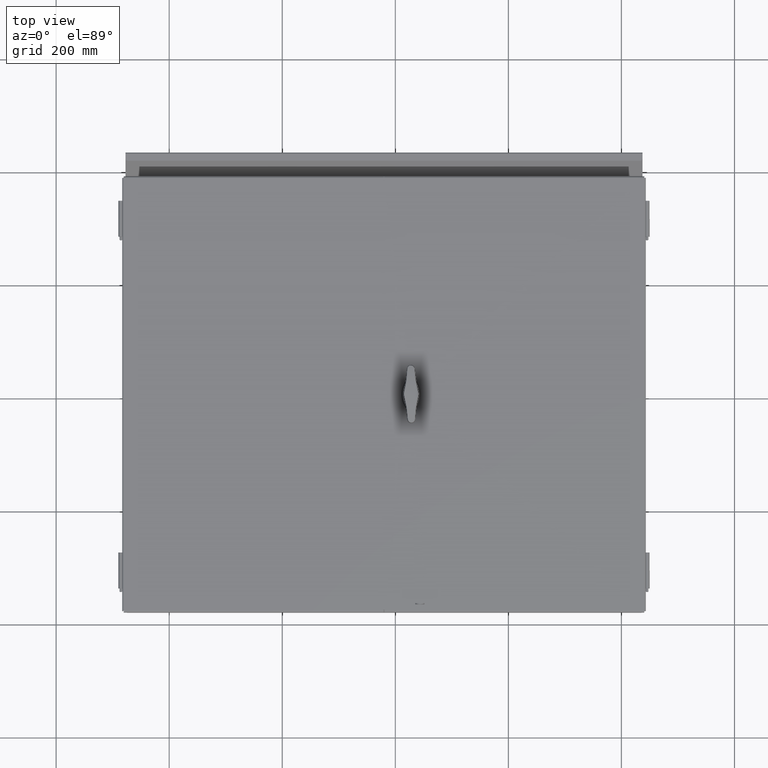
[diagram: clean part render]
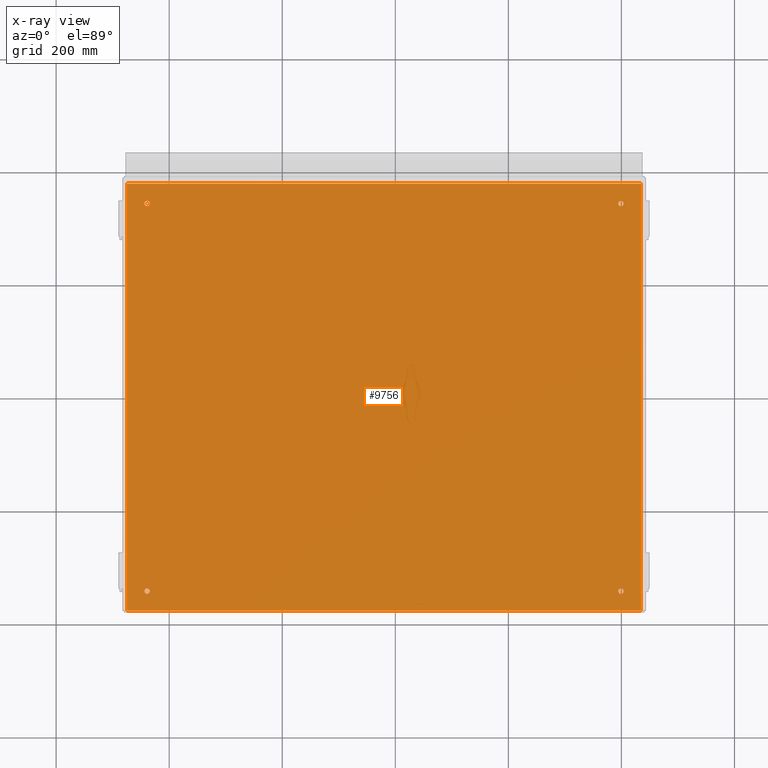
[diagram: x-ray — body ghosted, one internal face saturated and labeled with its STEP entity id]
A machine part, top view, then the same camera in x-ray: the body is ghosted and one INTERNAL B-rep face — a face not visible from any outside direction — is saturated and labeled: STEP entity #9756.
In plain terms, the highlighted planar face has unit normal (0, -0, 1).
Its self-contained STEP definition (entity closure, byte-faithful):
#629=PLANE($,#10470);
#1056=LINE($,#14647,#1804);
#1062=LINE($,#14667,#1810);
#1064=LINE($,#14670,#1812);
#1066=LINE($,#14674,#1814);
#1804=VECTOR($,#11735,35.8126);
#1810=VECTOR($,#11761,35.8126);
#1812=VECTOR($,#11765,29.7501);
#1814=VECTOR($,#11771,29.7501);
#2479=FACE_BOUND($,#3320,.T.);
#2480=FACE_BOUND($,#3321,.T.);
#2481=FACE_BOUND($,#3322,.T.);
#2482=FACE_BOUND($,#3323,.T.);
#2483=FACE_BOUND($,#3324,.T.);
#3320=EDGE_LOOP($,(#6934));
#3321=EDGE_LOOP($,(#6935));
#3322=EDGE_LOOP($,(#6936));
#3323=EDGE_LOOP($,(#6937));
#3324=EDGE_LOOP($,(#6938,#6939,#6940,#6941));
#4025=CIRCLE($,#10390,0.1875);
#4027=CIRCLE($,#10393,0.1875);
#4029=CIRCLE($,#10396,0.1875);
#4031=CIRCLE($,#10399,0.1875);
#4450=VERTEX_POINT($,#14407);
#4452=VERTEX_POINT($,#14412);
#4454=VERTEX_POINT($,#14417);
#4456=VERTEX_POINT($,#14422);
#4524=VERTEX_POINT($,#14638);
#4525=VERTEX_POINT($,#14642);
#4528=VERTEX_POINT($,#14658);
#4529=VERTEX_POINT($,#14662);
#5322=EDGE_CURVE($,#4450,#4450,#4025,.T.);
#5324=EDGE_CURVE($,#4452,#4452,#4027,.T.);
#5326=EDGE_CURVE($,#4454,#4454,#4029,.T.);
#5328=EDGE_CURVE($,#4456,#4456,#4031,.T.);
#5439=EDGE_CURVE($,#4524,#4525,#1056,.T.);
#5449=EDGE_CURVE($,#4528,#4529,#1062,.T.);
#5451=EDGE_CURVE($,#4528,#4525,#1064,.T.);
#5453=EDGE_CURVE($,#4524,#4529,#1066,.T.);
#6934=ORIENTED_EDGE($,*,*,#5322,.T.);
#6935=ORIENTED_EDGE($,*,*,#5324,.T.);
#6936=ORIENTED_EDGE($,*,*,#5326,.T.);
#6937=ORIENTED_EDGE($,*,*,#5328,.T.);
#6938=ORIENTED_EDGE($,*,*,#5439,.T.);
#6939=ORIENTED_EDGE($,*,*,#5451,.F.);
#6940=ORIENTED_EDGE($,*,*,#5449,.T.);
#6941=ORIENTED_EDGE($,*,*,#5453,.F.);
#9756=ADVANCED_FACE($,(#2479,#2480,#2481,#2482,#2483),#629,.T.);
#10390=AXIS2_PLACEMENT_3D($,#14408,#11504,#11505);
#10393=AXIS2_PLACEMENT_3D($,#14413,#11510,#11511);
#10396=AXIS2_PLACEMENT_3D($,#14418,#11516,#11517);
#10399=AXIS2_PLACEMENT_3D($,#14423,#11522,#11523);
#10470=AXIS2_PLACEMENT_3D($,#14675,#11772,#11773);
#11504=DIRECTION('center_axis',(0.,0.,-1.));
#11505=DIRECTION('ref_axis',(1.,0.,0.));
#11510=DIRECTION('center_axis',(0.,0.,-1.));
#11511=DIRECTION('ref_axis',(1.,0.,0.));
#11516=DIRECTION('center_axis',(0.,0.,-1.));
#11517=DIRECTION('ref_axis',(1.,0.,0.));
#11522=DIRECTION('center_axis',(0.,0.,-1.));
#11523=DIRECTION('ref_axis',(1.,0.,0.));
#11735=DIRECTION($,(1.,1.56225035072137E-016,0.));
#11761=DIRECTION($,(-1.,0.,0.));
#11765=DIRECTION($,(3.72988312734961E-016,-1.,0.));
#11771=DIRECTION($,(-2.7974123455122E-016,1.,0.));
#11772=DIRECTION('center_axis',(0.,0.,1.));
#11773=DIRECTION('ref_axis',(1.,0.,0.));
#14407=CARTESIAN_POINT('',(-16.6875,-13.5,0.0936999999998529));
#14408=CARTESIAN_POINT('Origin',(-16.5,-13.5,0.0937));
#14412=CARTESIAN_POINT('',(-16.6875,13.5,0.0937));
#14413=CARTESIAN_POINT('Origin',(-16.5,13.5,0.0937));
#14417=CARTESIAN_POINT('',(16.3125,-13.5,0.0936999999998529));
#14418=CARTESIAN_POINT('Origin',(16.5,-13.5,0.0937));
#14422=CARTESIAN_POINT('',(16.3125,13.5,0.0937));
#14423=CARTESIAN_POINT('Origin',(16.5,13.5,0.0937));
#14638=CARTESIAN_POINT('',(-17.9063,-14.87505,0.0937));
#14642=CARTESIAN_POINT('',(17.9063,-14.87505,0.0937));
#14647=CARTESIAN_POINT($,(8.95315,-14.87505,0.0937));
#14658=CARTESIAN_POINT('',(17.9063,14.87505,0.0937));
#14662=CARTESIAN_POINT('',(-17.9063,14.87505,0.0937));
#14667=CARTESIAN_POINT($,(-8.95315,14.87505,0.0937));
#14670=CARTESIAN_POINT($,(17.9063,15.,0.0937));
#14674=CARTESIAN_POINT($,(-17.9063,-15.,0.0937));
#14675=CARTESIAN_POINT('Origin',(-1.3987061727561E-015,-2.09805925913415E-015,
0.0937));